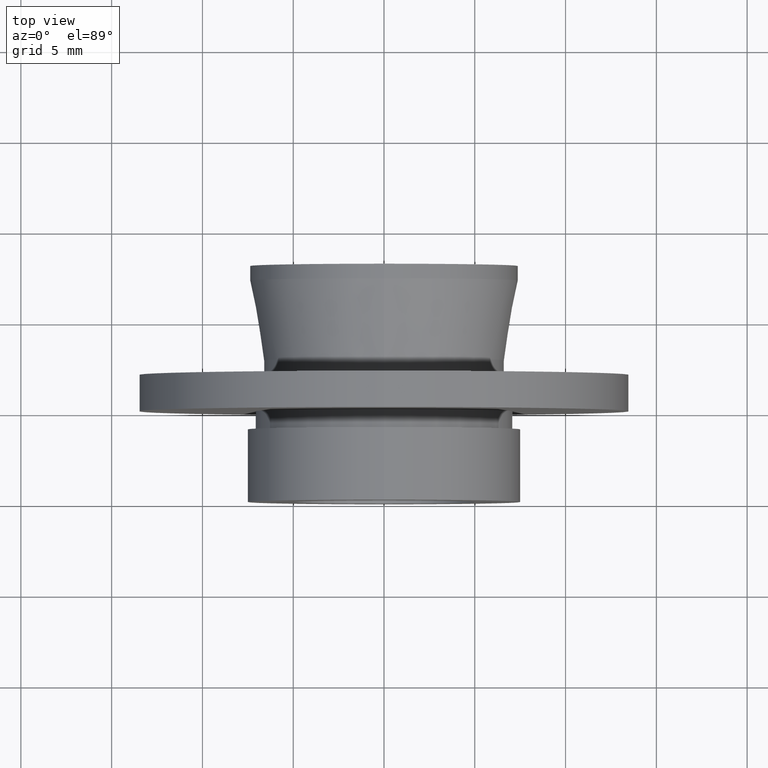
[diagram: clean part render]
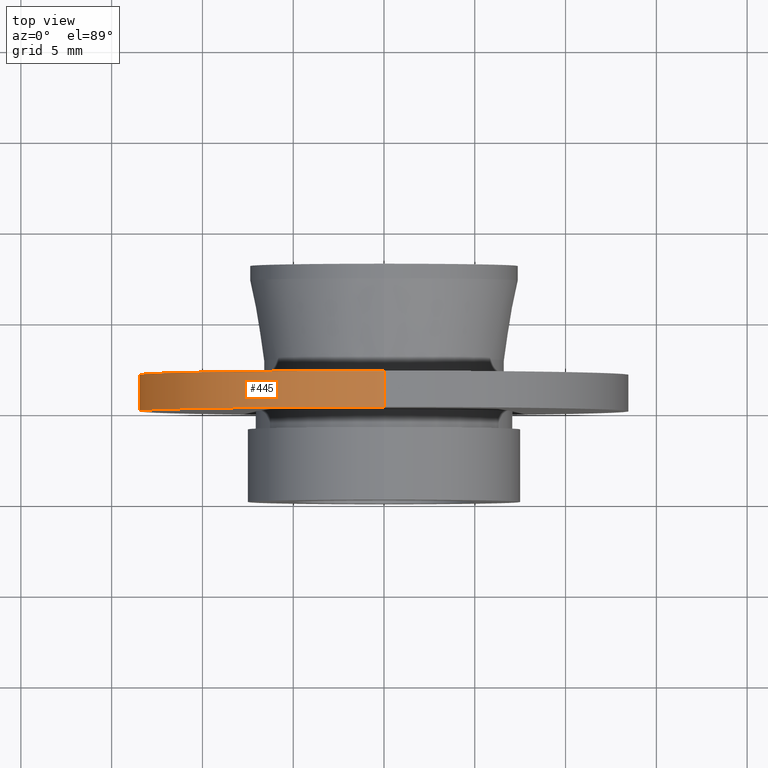
[diagram: same view with one face highlighted and labeled with its STEP entity id]
A machine part, top view. The second image highlights one B-rep face of the part: STEP entity #445.
In plain terms, the highlighted cylindrical surface (partial cylindrical patch) has radius 13.5 mm, axis along (-0, -1, -0).
Its self-contained STEP definition (entity closure, byte-faithful):
#10 = VERTEX_POINT ( 'NONE', #151 ) ;
#35 = CIRCLE ( 'NONE', #665, 13.49999999999999800 ) ;
#43 = DIRECTION ( 'NONE',  ( 0.0000000000000000000, 0.0000000000000000000, -1.000000000000000000 ) ) ;
#65 = CYLINDRICAL_SURFACE ( 'NONE', #637, 13.49999999999999800 ) ;
#92 = ORIENTED_EDGE ( 'NONE', *, *, #443, .T. ) ;
#95 = CARTESIAN_POINT ( 'NONE',  ( 0.0000000000000000000, 6.999999999999999100, 0.0000000000000000000 ) ) ;
#130 = VECTOR ( 'NONE', #169, 1000.000000000000000 ) ;
#147 = CARTESIAN_POINT ( 'NONE',  ( 0.0000000000000000000, 4.999999999999999100, -13.49999999999999800 ) ) ;
#151 = CARTESIAN_POINT ( 'NONE',  ( 0.0000000000000000000, 6.999999999999999100, -13.49999999999999800 ) ) ;
#169 = DIRECTION ( 'NONE',  ( -0.0000000000000000000, -1.000000000000000000, -0.0000000000000000000 ) ) ;
#198 = CIRCLE ( 'NONE', #428, 13.49999999999999800 ) ;
#216 = VERTEX_POINT ( 'NONE', #626 ) ;
#223 = CARTESIAN_POINT ( 'NONE',  ( 0.0000000000000000000, 0.0000000000000000000, -13.49999999999999800 ) ) ;
#226 = LINE ( 'NONE', #436, #130 ) ;
#231 = ORIENTED_EDGE ( 'NONE', *, *, #272, .T. ) ;
#249 = DIRECTION ( 'NONE',  ( -0.0000000000000000000, -1.000000000000000000, -0.0000000000000000000 ) ) ;
#253 = CARTESIAN_POINT ( 'NONE',  ( 0.0000000000000000000, 4.999999999999999100, 0.0000000000000000000 ) ) ;
#269 = ORIENTED_EDGE ( 'NONE', *, *, #543, .F. ) ;
#272 = EDGE_CURVE ( 'NONE', #10, #448, #597, .T. ) ;
#345 = DIRECTION ( 'NONE',  ( 0.0000000000000000000, 0.0000000000000000000, -1.000000000000000000 ) ) ;
#347 = CARTESIAN_POINT ( 'NONE',  ( 0.0000000000000000000, 0.0000000000000000000, 0.0000000000000000000 ) ) ;
#348 = DIRECTION ( 'NONE',  ( -0.0000000000000000000, -1.000000000000000000, -0.0000000000000000000 ) ) ;
#353 = VERTEX_POINT ( 'NONE', #393 ) ;
#365 = EDGE_CURVE ( 'NONE', #216, #353, #226, .T. ) ;
#393 = CARTESIAN_POINT ( 'NONE',  ( 1.653273178848926700E-015, 4.999999999999999100, 13.49999999999999800 ) ) ;
#428 = AXIS2_PLACEMENT_3D ( 'NONE', #95, #348, #500 ) ;
#436 = CARTESIAN_POINT ( 'NONE',  ( 1.653273178848926700E-015, 0.0000000000000000000, 13.49999999999999800 ) ) ;
#443 = EDGE_CURVE ( 'NONE', #216, #10, #198, .T. ) ;
#445 = ADVANCED_FACE ( 'NONE', ( #541 ), #65, .T. ) ;
#448 = VERTEX_POINT ( 'NONE', #147 ) ;
#453 = VECTOR ( 'NONE', #537, 1000.000000000000000 ) ;
#458 = ORIENTED_EDGE ( 'NONE', *, *, #365, .F. ) ;
#500 = DIRECTION ( 'NONE',  ( 0.0000000000000000000, 0.0000000000000000000, -1.000000000000000000 ) ) ;
#537 = DIRECTION ( 'NONE',  ( -0.0000000000000000000, -1.000000000000000000, -0.0000000000000000000 ) ) ;
#541 = FACE_OUTER_BOUND ( 'NONE', #601, .T. ) ;
#543 = EDGE_CURVE ( 'NONE', #353, #448, #35, .T. ) ;
#597 = LINE ( 'NONE', #223, #453 ) ;
#601 = EDGE_LOOP ( 'NONE', ( #458, #92, #231, #269 ) ) ;
#626 = CARTESIAN_POINT ( 'NONE',  ( 1.653273178848926700E-015, 6.999999999999999100, 13.49999999999999800 ) ) ;
#637 = AXIS2_PLACEMENT_3D ( 'NONE', #347, #249, #345 ) ;
#662 = DIRECTION ( 'NONE',  ( -0.0000000000000000000, -1.000000000000000000, -0.0000000000000000000 ) ) ;
#665 = AXIS2_PLACEMENT_3D ( 'NONE', #253, #662, #43 ) ;